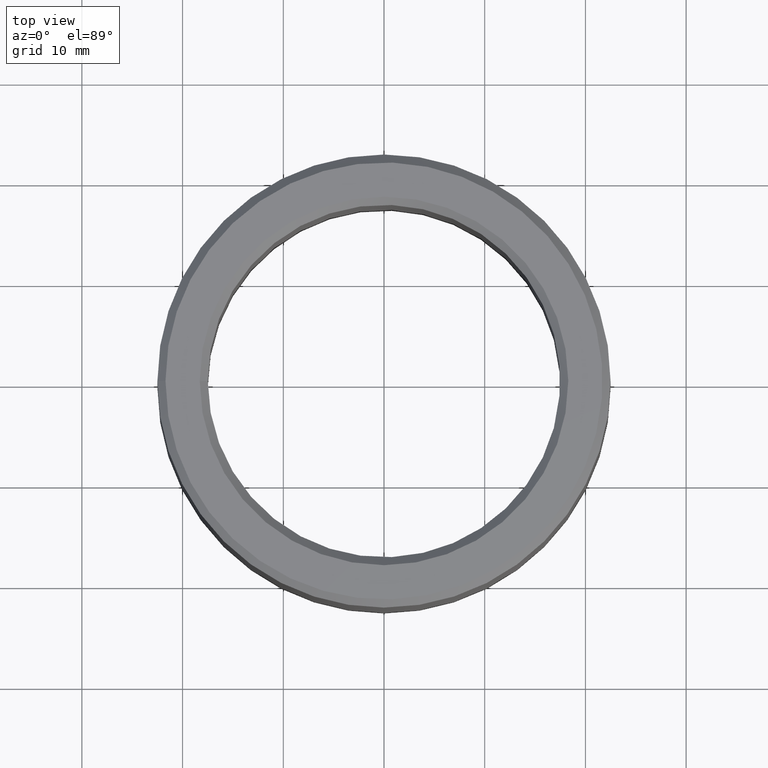
[diagram: clean part render]
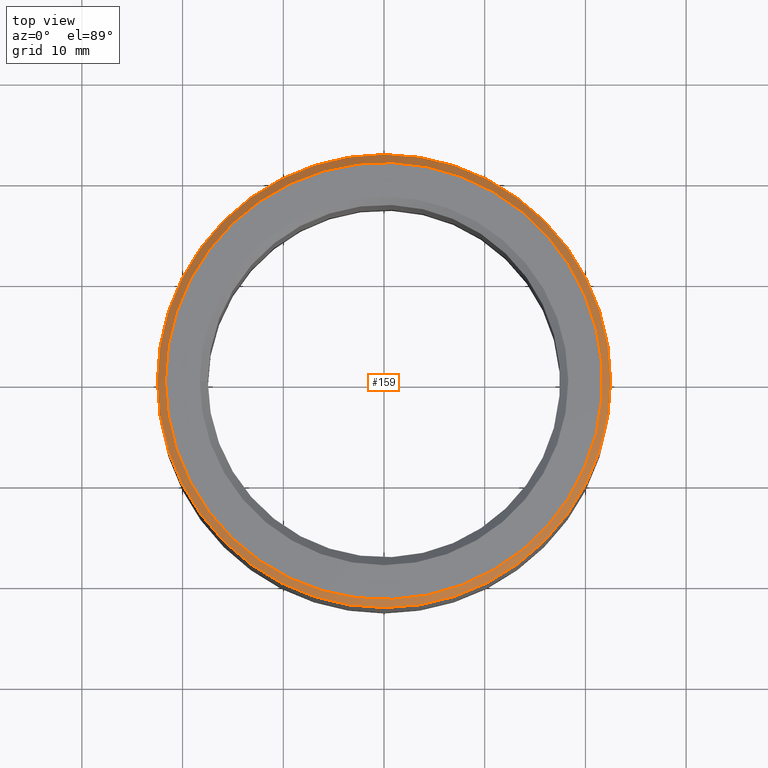
[diagram: same view with one face highlighted and labeled with its STEP entity id]
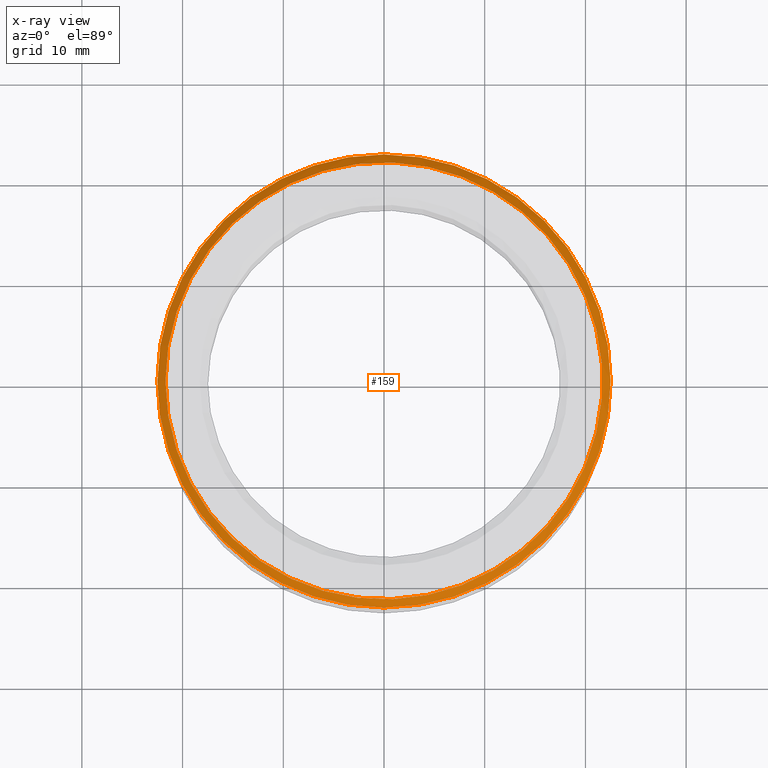
[diagram: x-ray of the same camera — body ghosted, the highlighted face saturated]
A machine part, top view. The second image highlights one B-rep face of the part: STEP entity #159.
The next image is the same camera in x-ray: the body ghosted, the highlighted face saturated — about 0% of this face is hidden behind the body in this view.
In plain terms, the highlighted conical surface has half-angle 45 deg.
Its self-contained STEP definition (entity closure, byte-faithful):
#159=ADVANCED_FACE('',(#183,#184),#185,.T.);
#183=FACE_BOUND('',#3207,.T.);
#184=FACE_OUTER_BOUND('',#3208,.T.);
#185=CONICAL_SURFACE('',#3209,0.0225,0.785398163397439);
#3207=EDGE_LOOP('',(#6254));
#3208=EDGE_LOOP('',(#6255));
#3209=AXIS2_PLACEMENT_3D('',#6256,#6257,#6258);
#6254=ORIENTED_EDGE('',*,*,#6303,.T.);
#6255=ORIENTED_EDGE('',*,*,#6304,.F.);
#6256=CARTESIAN_POINT('',(0.0,0.0,0.0342));
#6257=DIRECTION('',(0.0,-6.12323399573677E-017,-1.0));
#6258=DIRECTION('',(0.0,1.0,-6.12323399573677E-017));
#6303=EDGE_CURVE('',#6334,#6334,#6335,.T.);
#6304=EDGE_CURVE('',#6336,#6336,#6337,.T.);
#6334=VERTEX_POINT('',#6596);
#6335=CIRCLE('',#6597,0.0217);
#6336=VERTEX_POINT('',#6598);
#6337=CIRCLE('',#6599,0.0225);
#6596=CARTESIAN_POINT('',(0.0,0.0217,0.035));
#6597=AXIS2_PLACEMENT_3D('',#6631,#6632,#6633);
#6598=CARTESIAN_POINT('',(0.0,0.0225,0.0342));
#6599=AXIS2_PLACEMENT_3D('',#6634,#6635,#6636);
#6631=CARTESIAN_POINT('',(0.0,0.0,0.035));
#6632=DIRECTION('',(0.0,-6.12323399573677E-017,-1.0));
#6633=DIRECTION('',(0.0,1.0,-6.12323399573677E-017));
#6634=CARTESIAN_POINT('',(0.0,0.0,0.0342));
#6635=DIRECTION('',(0.0,-6.12323399573677E-017,-1.0));
#6636=DIRECTION('',(0.0,1.0,-6.12323399573677E-017));